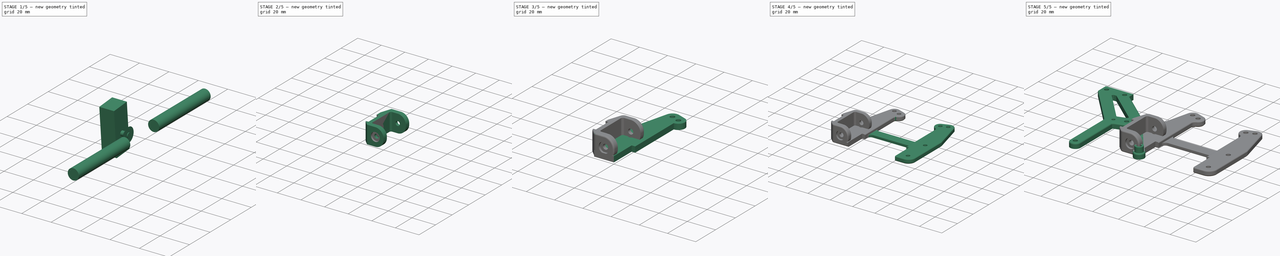
[diagram: build sequence overview — one tinted view per stage of 5, left to right]
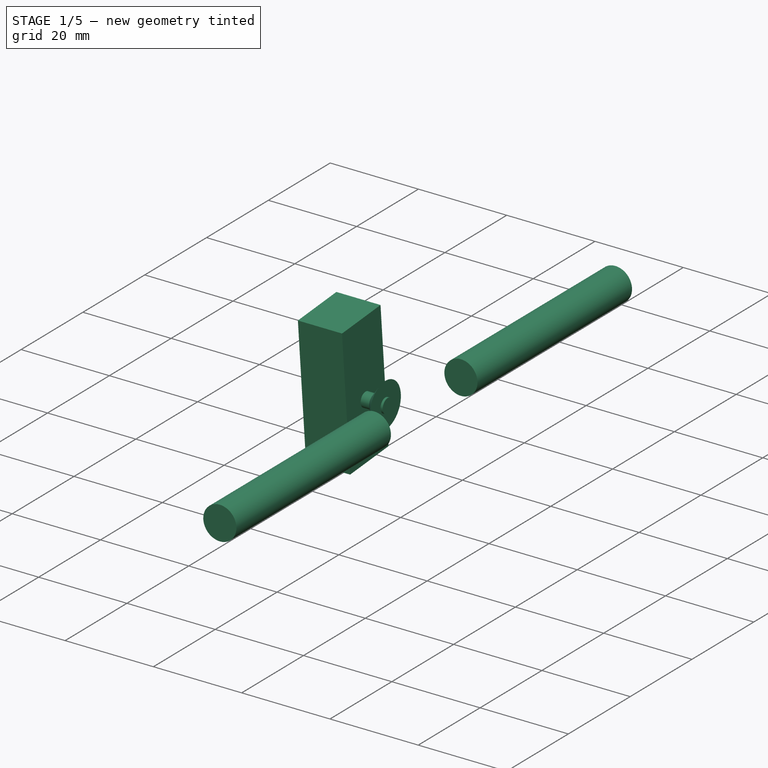
[diagram: stage 1 of 5 — iso view after this stage's code; geometry added in this stage tinted green]
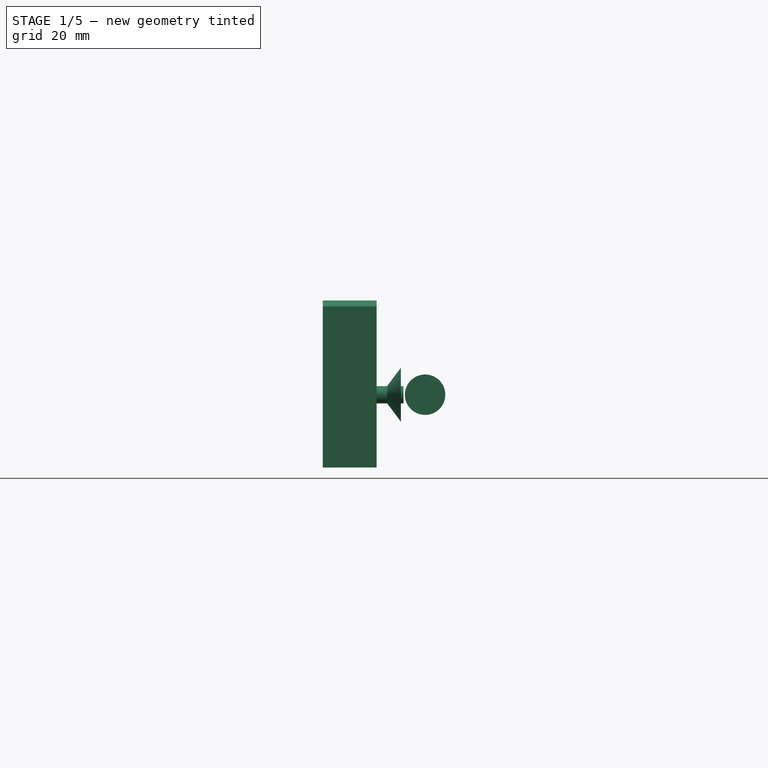
[diagram: stage 1 of 5 — front view after this stage's code; geometry added in this stage tinted green]
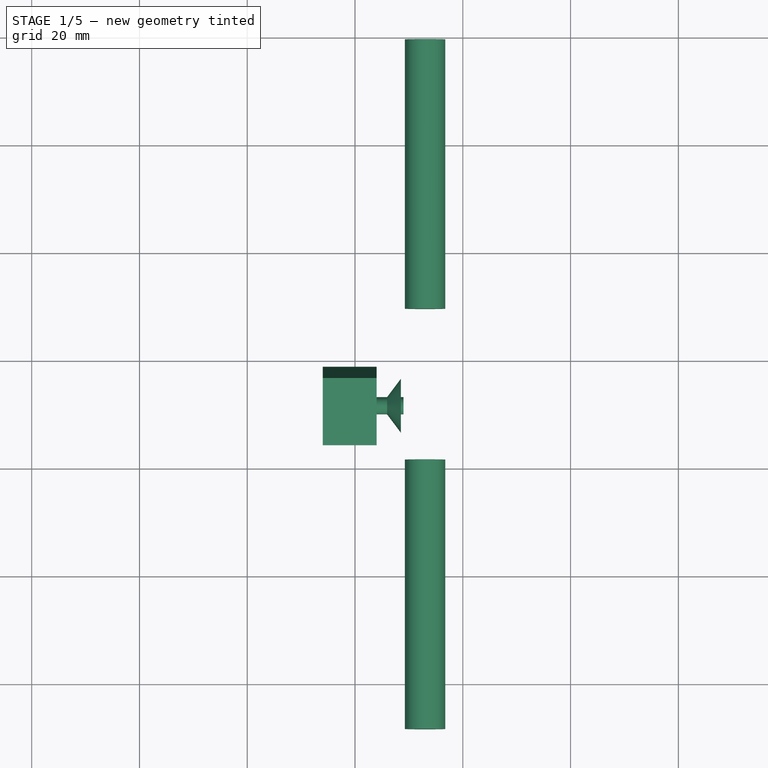
[diagram: stage 1 of 5 — top view after this stage's code; geometry added in this stage tinted green]
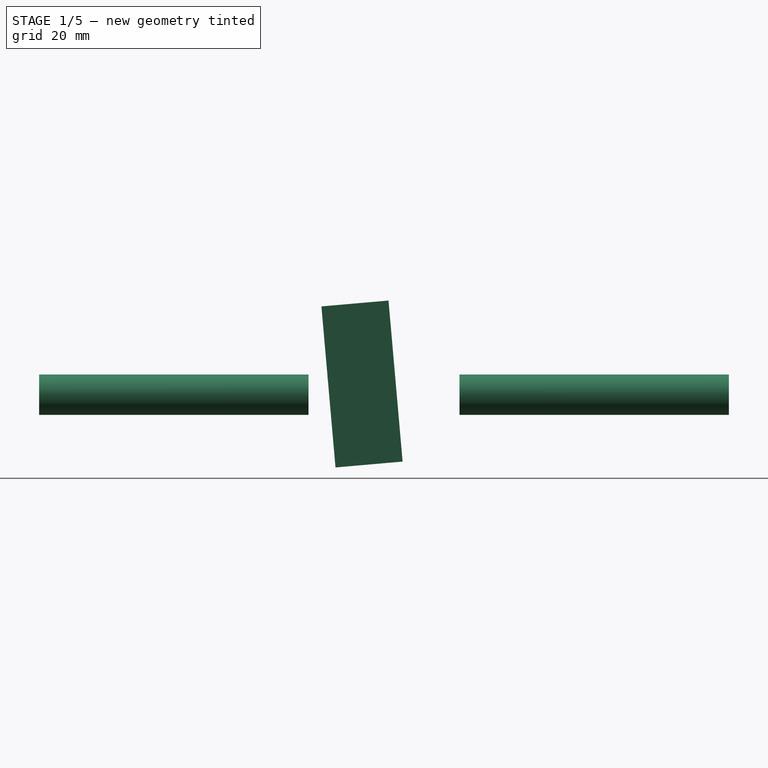
[diagram: stage 1 of 5 — right view after this stage's code; geometry added in this stage tinted green]
FCSTD DOCUMENT  (FreeCAD 0.18.3R)
Label: hops
License: All rights reserved
LicenseURL: http://en.wikipedia.org/wiki/All_rights_reserved
objects: Part::Fillet×8, Part::Cut×7, Part::Cylinder×6, Sketcher::SketchObject×3, PartDesign::Pad×3, PartDesign::Body×3, App::Part×3, Part::Box×3, Part::MultiFuse×2, Part::Mirroring×1, Part::Chamfer×1, Part::Cone×1
note: 41 computed .brp shape members not serialized (recipe doc carries the construction recipe); baked Part::Feature solids carry a one-line shape summary decoded from their .brp

FEATURE [Part::Cylinder] Cylinder003
  Angle = 360
  AttacherType = Attacher::AttachEngine3D
  Height = 50
  Placement = pos=(-7,29.5,7.5) rot=(-1,0,0;1.5708rad)
  Radius = 3.75
FEATURE [Part::Cylinder] Cylinder004
  Angle = 360
  AttacherType = Attacher::AttachEngine3D
  Height = 50
  Placement = pos=(-7,-48.5,7.5) rot=(-1,0,0;1.5708rad)
  Radius = 3.75
FEATURE [Part::MultiFuse] Fusion001
  Refine = true
  Shapes = -> [Cylinder003,Cylinder004]
FEATURE [Part::Box] Box001  label="Cube001"
  AttacherType = Attacher::AttachEngine3D
  Height = 30
  Length = 10
  Placement = pos=(-26,6.5,-6) rot=(1,0,0;0.087266rad)
  Width = 12.5
FEATURE [Part::Cylinder] Cylinder005
  Angle = 360
  AttacherType = Attacher::AttachEngine3D
  Height = 10
  Placement = pos=(-11,11.5,7.5) rot=(0,1,0;4.71239rad)
  Radius = 1.6
FEATURE [Part::Cone] Cone
  Angle = 360
  AttacherType = Attacher::AttachEngine3D
  Height = 3
  Placement = pos=(-11.5,11.5,7.5) rot=(0,1,0;4.71239rad)
  Radius1 = 5
  Radius2 = 1
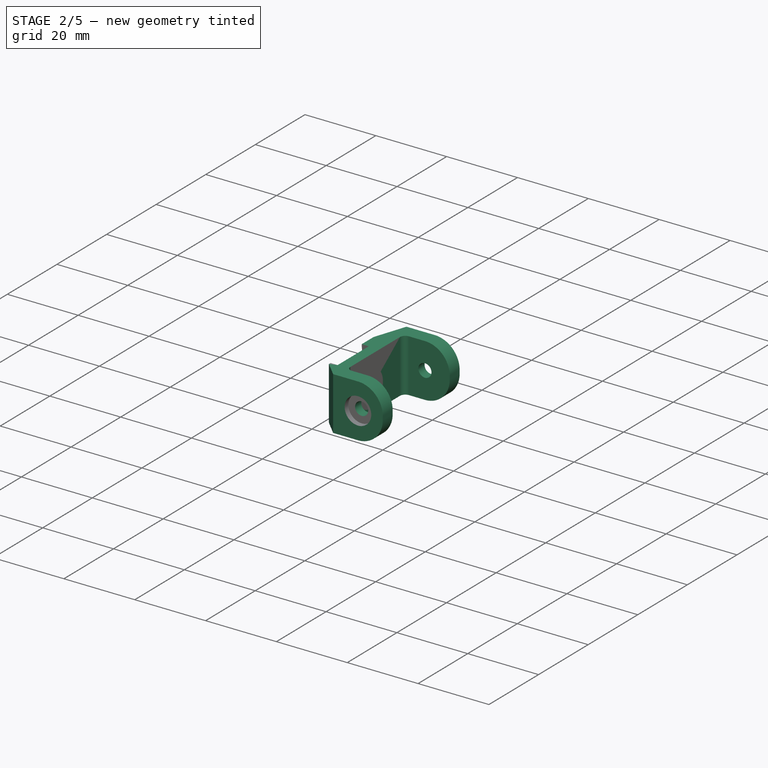
[diagram: stage 2 of 5 — iso view after this stage's code; geometry added in this stage tinted green]
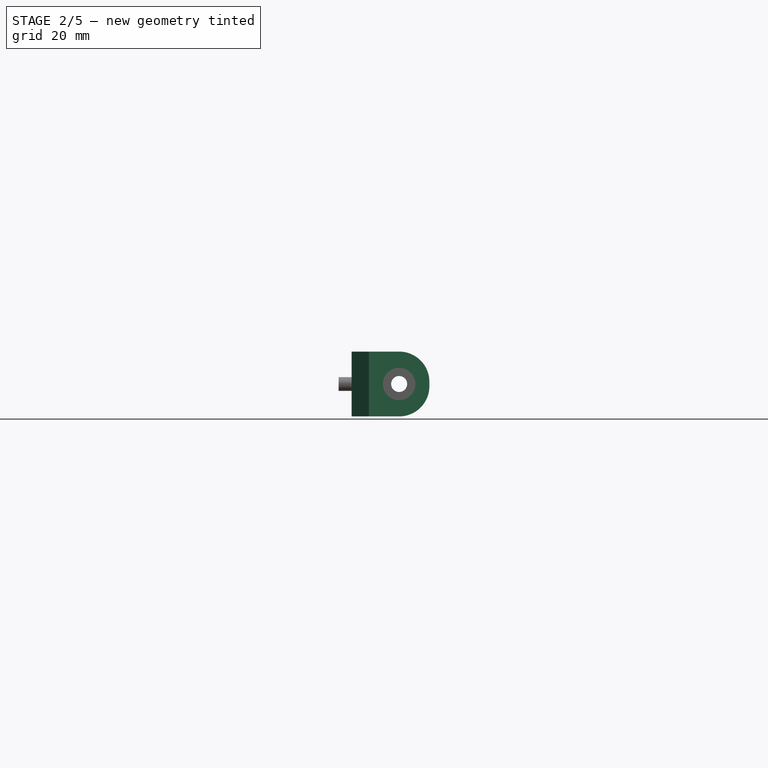
[diagram: stage 2 of 5 — front view after this stage's code; geometry added in this stage tinted green]
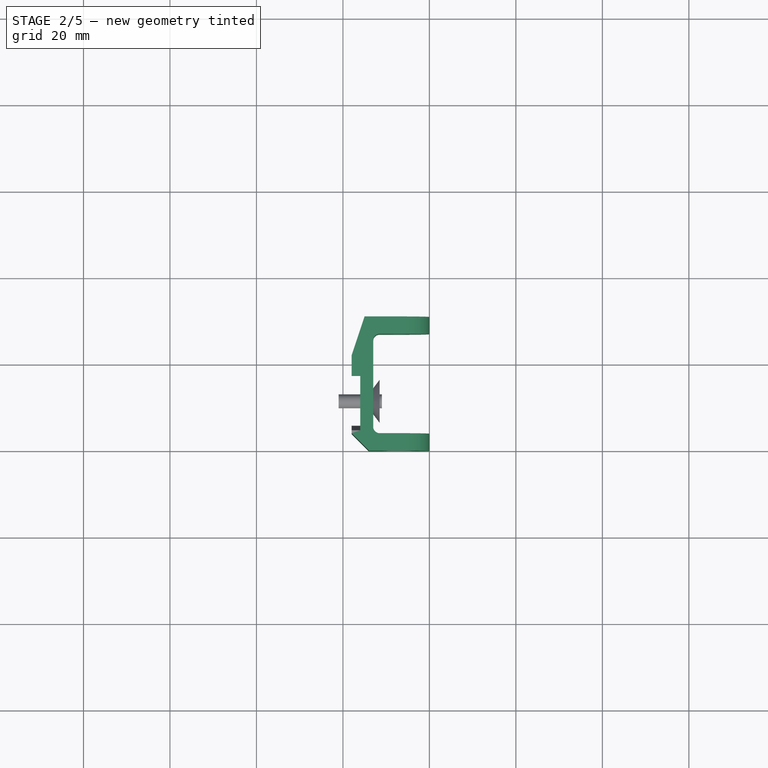
[diagram: stage 2 of 5 — top view after this stage's code; geometry added in this stage tinted green]
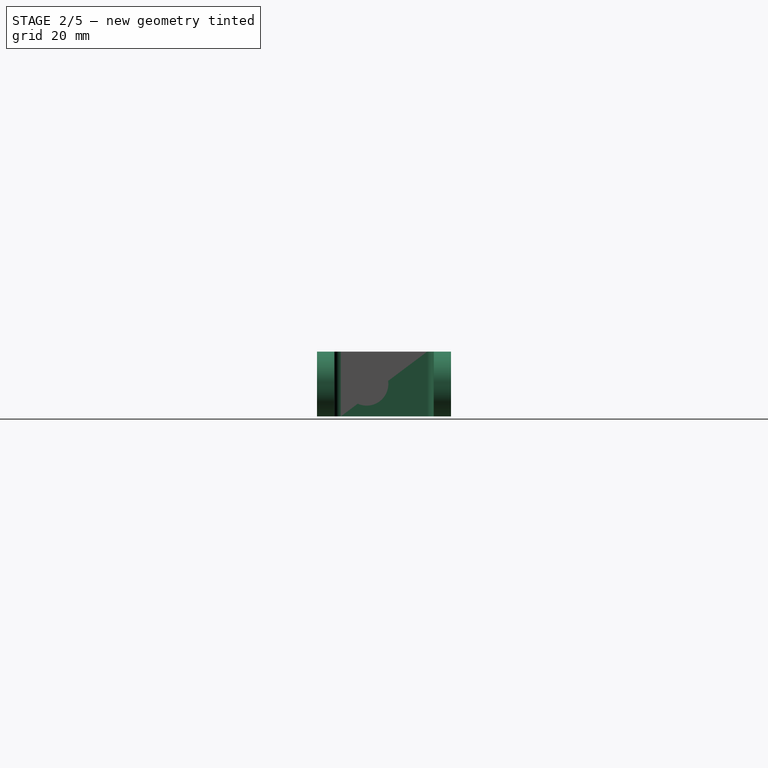
[diagram: stage 2 of 5 — right view after this stage's code; geometry added in this stage tinted green]
FEATURE [Sketcher::SketchObject] Sketch
  MapMode = 5
  Support = -> [XY_Plane005]
  sketch-geometry (11):
    g0: LineSegment StartX=-14 StartY=0 StartZ=0 EndX=-18 EndY=4 EndZ=0
    g1: LineSegment StartX=-18 StartY=22 StartZ=0 EndX=-15 EndY=31 EndZ=0
    g2: LineSegment StartX=-15 StartY=31 StartZ=0 EndX=0 EndY=31 EndZ=0
    g3: LineSegment StartX=0 StartY=31 StartZ=0 EndX=0 EndY=27 EndZ=0
    g4: LineSegment StartX=0 StartY=27 StartZ=0 EndX=-13 EndY=27 EndZ=0
    g5: LineSegment StartX=-13 StartY=27 StartZ=0 EndX=-13 EndY=4 EndZ=0
    g6: LineSegment StartX=-13 StartY=4 StartZ=0 EndX=0 EndY=4 EndZ=0
    g7: LineSegment StartX=0 StartY=4 StartZ=0 EndX=0 EndY=0 EndZ=0
    g8: LineSegment StartX=0 StartY=0 StartZ=0 EndX=-14 EndY=0 EndZ=0
    g9: LineSegment [constr] StartX=0 StartY=27 StartZ=0 EndX=0 EndY=4 EndZ=0
    g10: LineSegment StartX=-18 StartY=22 StartZ=0 EndX=-18 EndY=4 EndZ=0
  constraints (31):
    c: Coincident(g1,g2)
    c: Horizontal(g2)
    c: Coincident(g2,g3)
    c: Coincident(g3,g4)
    c: Coincident(g4,g5)
    c: Vertical(g5)
    c: Coincident(g5,g6)
    c: Horizontal(g6)
    c: Coincident(g6,g7)
    c: Vertical(g7)
    c: Coincident(g7,g8)
    c: Coincident(g8,g0)
    c: Horizontal(g8)
    c: Equal(g7,g3)
    c: Vertical(g3)
    c: Distance(g3) = 4
    c: Horizontal(g4)
    c: Coincident(g9,g3)
    c: Coincident(g9,g6)
    c: Vertical(g9)
    c: Distance(g5) = 23
    c: Vertical(g10)
    c: Distance(g10,g5) = 5
    c: Coincident(g1,g10)
    c: Coincident(g0,g10)
    c: Distance(g10) = 18
    c: Angle(g8,g0) = 2.35619
    c: Coincident(g7,g-1)
    c: DistanceX(g0,g7) = 18
    c: Distance(g8) = 14
    c: Distance(g2) = 15
FEATURE [PartDesign::Pad] Pad002
  Length = 15
  Length2 = 100
  Profile = -> Sketch
  Refine = true
  Type = 0
FEATURE [PartDesign::Body] Body002
  Group = -> [Sketch,Pad002]
  Origin = -> Origin005
  Tip = -> Pad002
FEATURE [App::Part] Part002
  Group = -> [Body002]
  Origin = -> Origin004
FEATURE [Part::Fillet] Fillet007
  Base = -> Pad002
  Edges = 2 edges r=1.5: [Edge11,Edge14]
FEATURE [Part::Fillet] Fillet008
  Base = -> Fillet007
  Edges = 4 edges r=7: [Edge6,Edge13,Edge19,Edge26]
FEATURE [Part::Cylinder] Cylinder002
  Angle = 360
  AttacherType = Attacher::AttachEngine3D
  Height = 50
  Placement = pos=(-7,-6,7.5) rot=(1,0,0;-1.5708rad)
  Radius = 1.85
FEATURE [Part::Cut] Cut001
  Base = -> Fillet008
  Refine = true
  Tool = -> Cylinder002
FEATURE [Part::Cut] Cut002
  Base = -> Cut001
  Refine = true
  Tool = -> Fusion001
FEATURE [Part::Cut] Cut003
  Base = -> Cut002
  Refine = true
  Tool = -> Box001
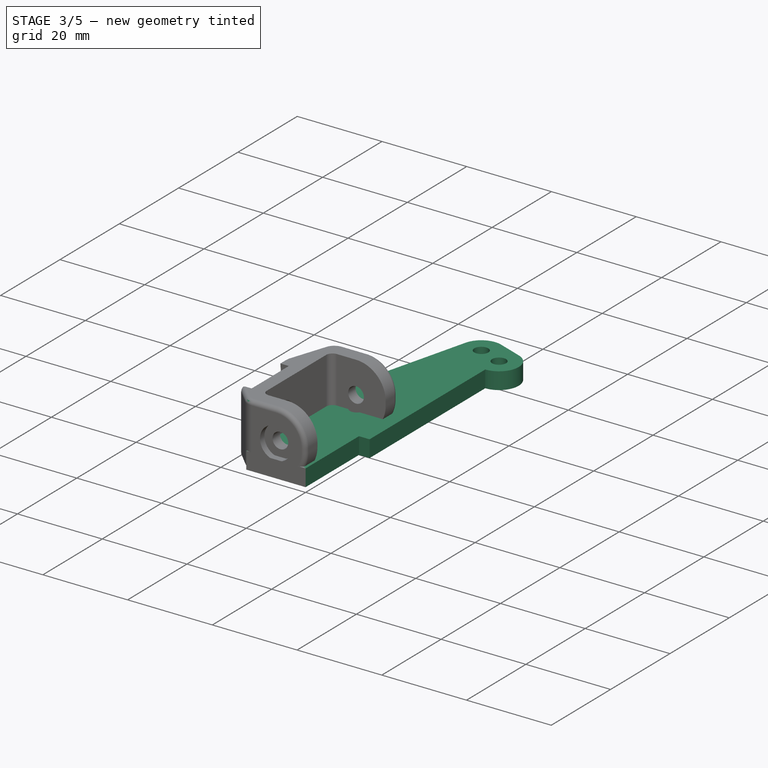
[diagram: stage 3 of 5 — iso view after this stage's code; geometry added in this stage tinted green]
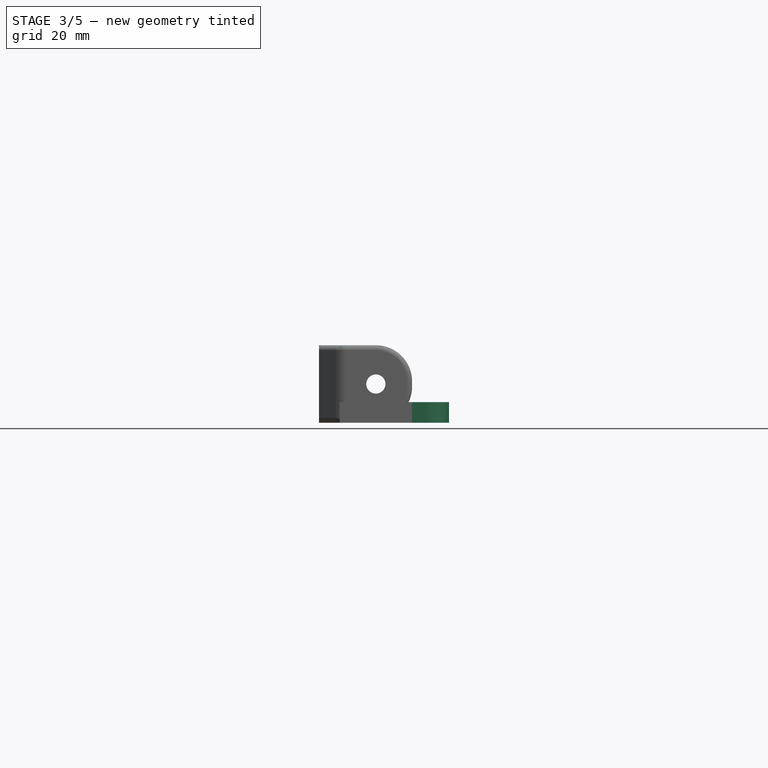
[diagram: stage 3 of 5 — front view after this stage's code; geometry added in this stage tinted green]
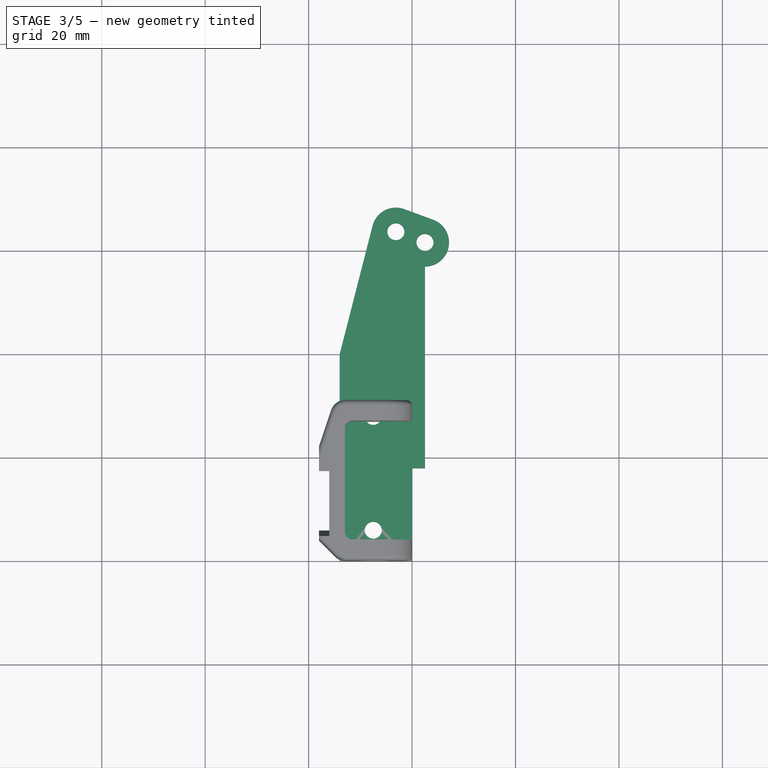
[diagram: stage 3 of 5 — top view after this stage's code; geometry added in this stage tinted green]
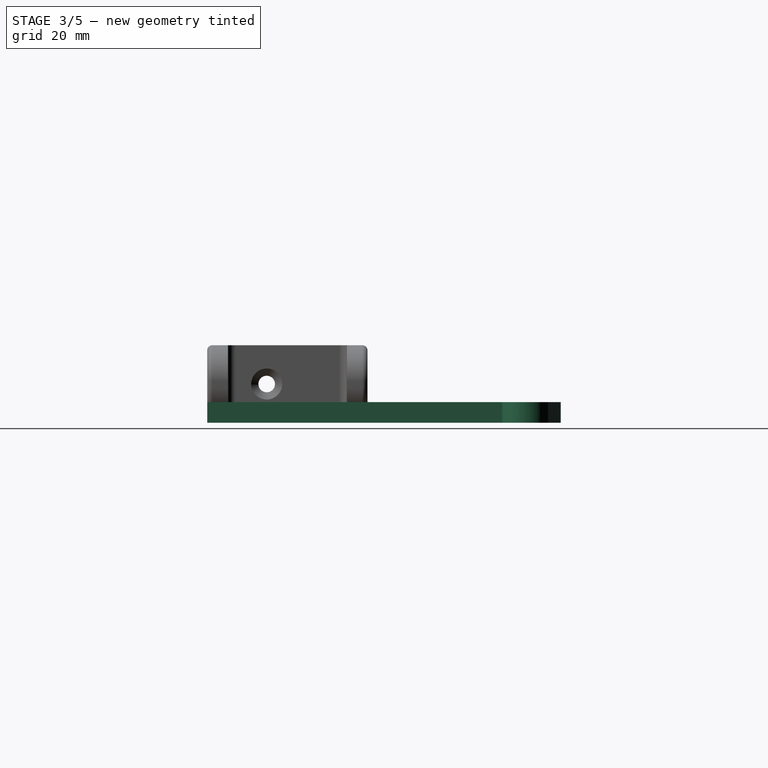
[diagram: stage 3 of 5 — right view after this stage's code; geometry added in this stage tinted green]
FEATURE [Sketcher::SketchObject] Sketch008
  MapMode = 5
  sketch-geometry (22):
    g0: LineSegment StartX=-14 StartY=0 StartZ=0 EndX=-14 EndY=40 EndZ=0
    g1: LineSegment StartX=-14 StartY=40 StartZ=0 EndX=-7.63739 EndY=64.8701 EndZ=0
    g2: LineSegment StartX=2.5 StartY=18 StartZ=0 EndX=0 EndY=18 EndZ=0
    g3: LineSegment StartX=0 StartY=18 StartZ=0 EndX=0 EndY=0 EndZ=0
    g4: LineSegment StartX=-14 StartY=0 StartZ=0 EndX=0 EndY=0 EndZ=0
    g5: LineSegment StartX=2.5 StartY=18 StartZ=0 EndX=2.5 EndY=57 EndZ=0
    g6: Circle CenterX=2.5 CenterY=61.65 CenterZ=0 NormalX=0 NormalY=0 NormalZ=1 AngleXU=0 Radius=1.65
    g7: LineSegment StartX=-1.53006 StartY=68.0828 StartZ=0 EndX=4.10242 EndY=66.0152 EndZ=0
    g8: LineSegment [constr] StartX=3.0686 StartY=63.1989 StartZ=0 EndX=4.10242 EndY=66.0152 EndZ=0
    g9: ArcOfCircle CenterX=-3.13248 CenterY=63.7176 CenterZ=0 NormalX=0 NormalY=0 NormalZ=1 AngleXU=0 Radius=4.65 StartAngle=1.21898 EndAngle=2.89113
    g10: ArcOfCircle CenterX=2.5 CenterY=61.65 CenterZ=0 NormalX=0 NormalY=0 NormalZ=1 AngleXU=0 Radius=4.65 StartAngle=4.71239 EndAngle=7.50216
    g11: Circle CenterX=-3.13248 CenterY=63.7176 CenterZ=0 NormalX=0 NormalY=0 NormalZ=1 AngleXU=0 Radius=1.65
    g12: Circle [constr] CenterX=-7 CenterY=54.5 CenterZ=0 NormalX=0 NormalY=0 NormalZ=1 AngleXU=0 Radius=61
    g13: LineSegment [constr] StartX=-7.5 StartY=6 StartZ=0 EndX=-36.9961 EndY=5.52265 EndZ=0
    g14: LineSegment [constr] StartX=-36.9961 StartY=5.52265 StartZ=0 EndX=-42.4892 EndY=11.3387 EndZ=0
    g15: LineSegment [constr] StartX=-7.5 StartY=28 StartZ=0 EndX=-31.4709 EndY=26.8175 EndZ=0
    g16: LineSegment [constr] StartX=-31.4709 StartY=26.8175 StartZ=0 EndX=-36.9961 EndY=5.52265 EndZ=0
    g17: LineSegment [constr] StartX=-31.4709 StartY=26.8175 StartZ=0 EndX=-42.4892 EndY=11.3387 EndZ=0
    g18: Circle [constr] CenterX=2.5 CenterY=61.65 CenterZ=0 NormalX=0 NormalY=0 NormalZ=1 AngleXU=0 Radius=48
    g19: Circle [constr] CenterX=2.5 CenterY=61.65 CenterZ=0 NormalX=0 NormalY=0 NormalZ=1 AngleXU=0 Radius=61
    g20: Circle CenterX=-7.5 CenterY=28 CenterZ=0 NormalX=0 NormalY=0 NormalZ=1 AngleXU=0 Radius=1.65
    g21: Circle CenterX=-7.5 CenterY=6 CenterZ=0 NormalX=0 NormalY=0 NormalZ=1 AngleXU=0 Radius=1.65
  constraints (57):
    c: Vertical(g0)
    c: Coincident(g0,g1)
    c: Horizontal(g2)
    c: Coincident(g2,g3)
    c: Vertical(g3)
    c: Coincident(g4,g0)
    c: Coincident(g4,g3)
    c: Horizontal(g4)
    c: Coincident(g5,g2)
    c: Vertical(g5)
    c: Distance(g3) = 18
    c: Distance(g2) = 2.5
    c: Distance(g4) = 14
    c: Coincident(g3,g-1)
    c: DistanceY(g-1,g5) = 57
    c: PointOnObject(g8,g6)
    c: PointOnObject(g8,g7)
    c: Perpendicular(g6,g8)
    c: Perpendicular(g7,g8)
    c: Radius(g6) = 1.65
    c: Distance(g8) = 3
    c: Tangent(g1,g9) = 1.5708
    c: Tangent(g7,g9) = 1.5708
    c: Tangent(g7,g10) = 1.5708
    c: Coincident(g10,g6)
    c: Equal(g9,g10)
    c: Equal(g11,g6)
    c: Coincident(g9,g11)
    c: DistanceY(g3,g12) = 54.5
    c: DistanceX(g12,g3) = 7
    c: Radius(g12) = 61
    c: Coincident(g5,g10)
    c: Coincident(g13,g14)
    c: Distance(g14) = 8
    c: Distance(g13) = 29.5
    c: Distance(g15) = 24
    c: DistanceY(g3,g15) = 28
    c: DistanceX(g15,g3) = 7.5
    c: Coincident(g16,g15)
    c: Coincident(g16,g13)
    c: Distance(g16) = 22
    c: DistanceX(g13,g3) = 7.5
    c: DistanceY(g3,g13) = 6
    c: Distance(g17) = 19
    c: Coincident(g15,g17)
    c: Coincident(g14,g17)
    c: Coincident(g6,g18)
    c: Coincident(g6,g19)
    c: Radius(g19) = 61
    c: Radius(g18) = 48
    c: DistanceX(g3,g6) = 2.5
    c: Coincident(g20,g15)
    c: Coincident(g21,g13)
    c: Equal(g21,g20)
    c: Equal(g20,g6)
    c: Distance(g6,g9) = 6
    c: Distance(g0) = 40
FEATURE [PartDesign::Pad] Pad
  Length = 4
  Length2 = 100
  Profile = -> Sketch008
  Refine = true
  Type = 0
FEATURE [Part::Cut] Cut004
  Base = -> Cut003
  Refine = true
  Tool = -> Cylinder005
FEATURE [Part::Box] Box002  label="Cube002"
  AttacherType = Attacher::AttachEngine3D
  Height = 10
  Length = 10
  Placement = pos=(-16.5,9,-1) rot=(0,1,0;0.610865rad)
  Width = 14
FEATURE [Part::Fillet] Fillet009
  Base = -> Cut004
  Edges = 9 edges: [Edge10 r=1,Edge16 r=1,Edge30 r=1,Edge31 r=1,Edge37 r=1,Edge43 r=1,Edge46 r=3,Edge55 r=3,Edge58 r=1]
FEATURE [Part::Cut] Cut005
  Base = -> Fillet009
  Refine = true
  Tool = -> Box002
FEATURE [Part::Cut] Cut006
  Base = -> Cut005
  Refine = true
  Tool = -> Cone
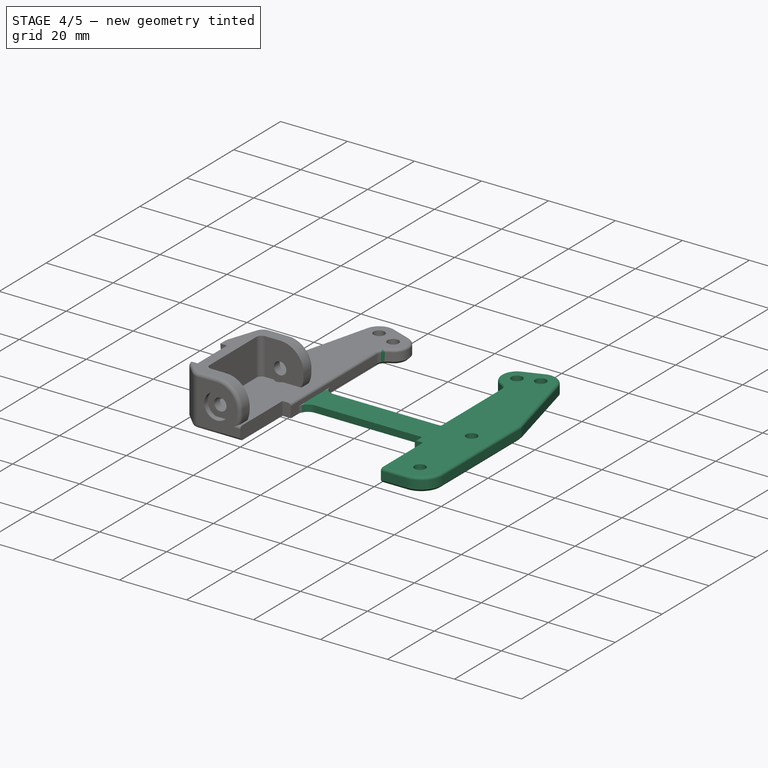
[diagram: stage 4 of 5 — iso view after this stage's code; geometry added in this stage tinted green]
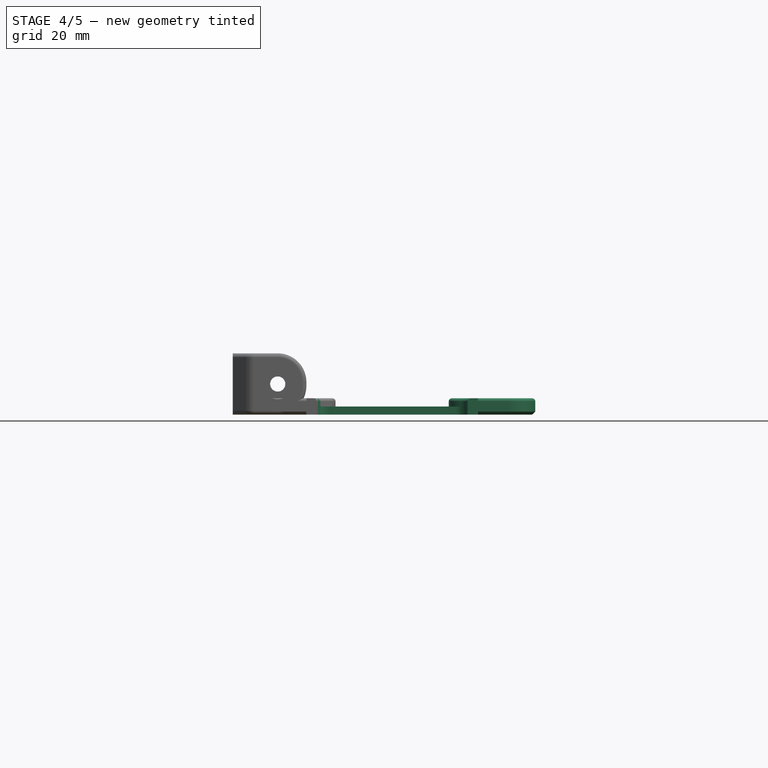
[diagram: stage 4 of 5 — front view after this stage's code; geometry added in this stage tinted green]
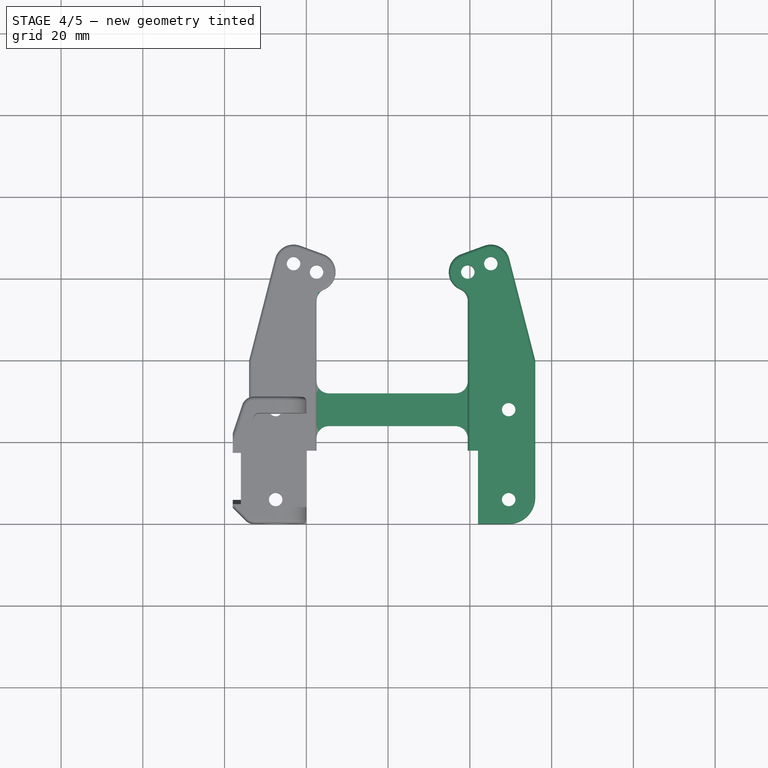
[diagram: stage 4 of 5 — top view after this stage's code; geometry added in this stage tinted green]
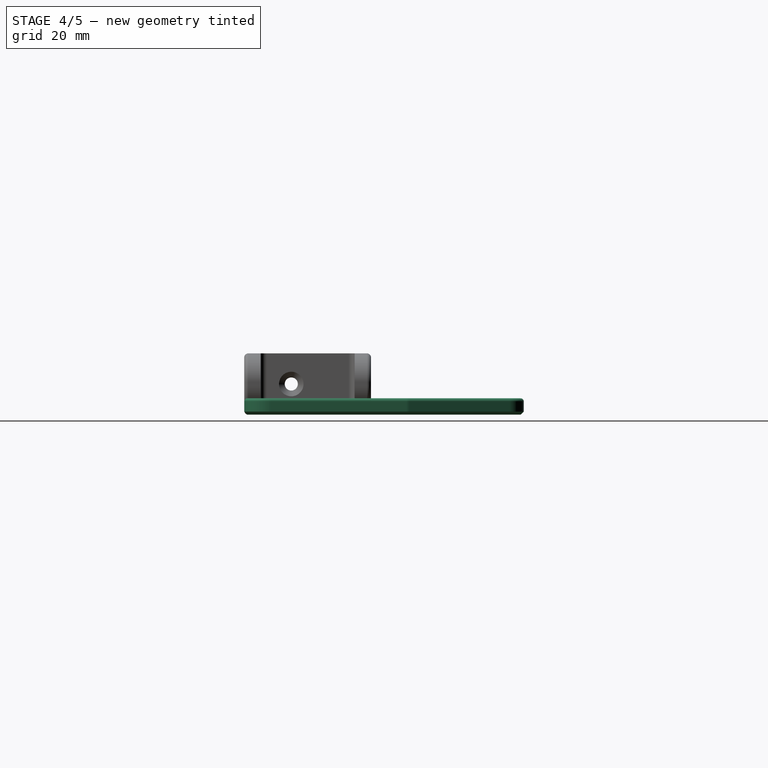
[diagram: stage 4 of 5 — right view after this stage's code; geometry added in this stage tinted green]
FEATURE [PartDesign::Body] Body
  Group = -> [Sketch008,Pad]
  Origin = -> Origin001
  Tip = -> Pad
FEATURE [App::Part] Part
  Group = -> [Body]
  Origin = -> Origin
FEATURE [Part::Box] Box  label="Cube"
  AttacherType = Attacher::AttachEngine3D
  Height = 2
  Length = 43
  Placement = pos=(0,24,0) rot=(0,0,1;0rad)
  Width = 8
FEATURE [Part::Mirroring] Part__Mirroring  label="Pad (Mirror #1)"
  Base = (0,0,0)
  Normal = (1,0,0)
  Placement = pos=(42,0,0) rot=(0,0,1;0rad)
  Source = -> Pad
FEATURE [Part::MultiFuse] Fusion
  Refine = true
  Shapes = -> [Pad,Box,Part__Mirroring]
FEATURE [Part::Fillet] Fillet
  Base = -> Fusion
  Edges = 2 edges r=6.5: [Edge34,Edge78]
FEATURE [Part::Fillet] Fillet001
  Base = -> Fillet
  Edges = 8 edges r=3: [Edge23,Edge29,Edge31,Edge33,Edge64,Edge68,Edge69,Edge82]
FEATURE [Part::Fillet] Fillet006
  Base = -> Fillet001
  Edges = 2 edges r=0.75: [Edge6,Edge113]
FEATURE [Part::Chamfer] Chamfer
  Base = -> Fillet006
  Edges = 1 edges r=0.75: [Edge79]
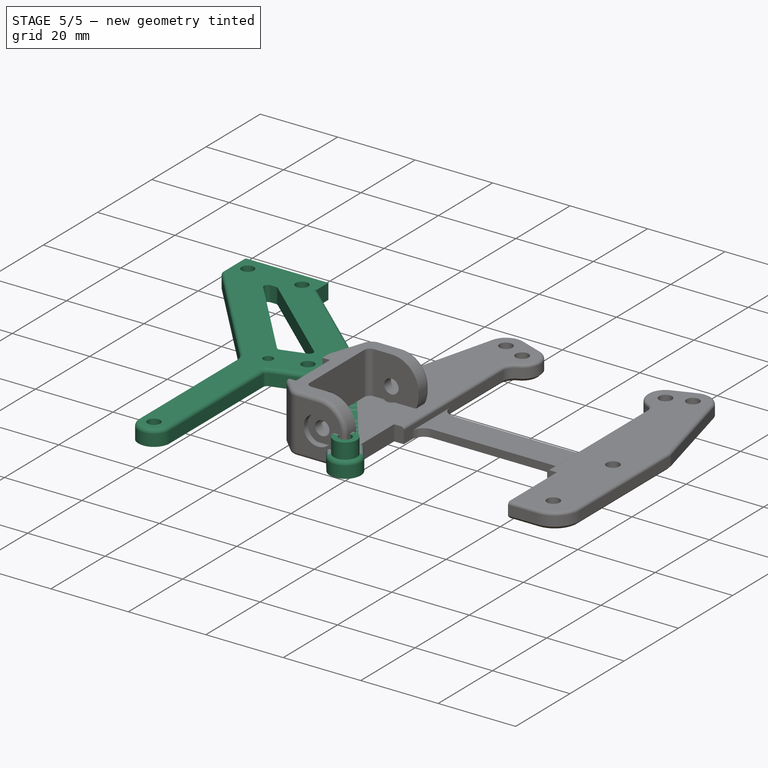
[diagram: stage 5 of 5 — iso view after this stage's code; geometry added in this stage tinted green]
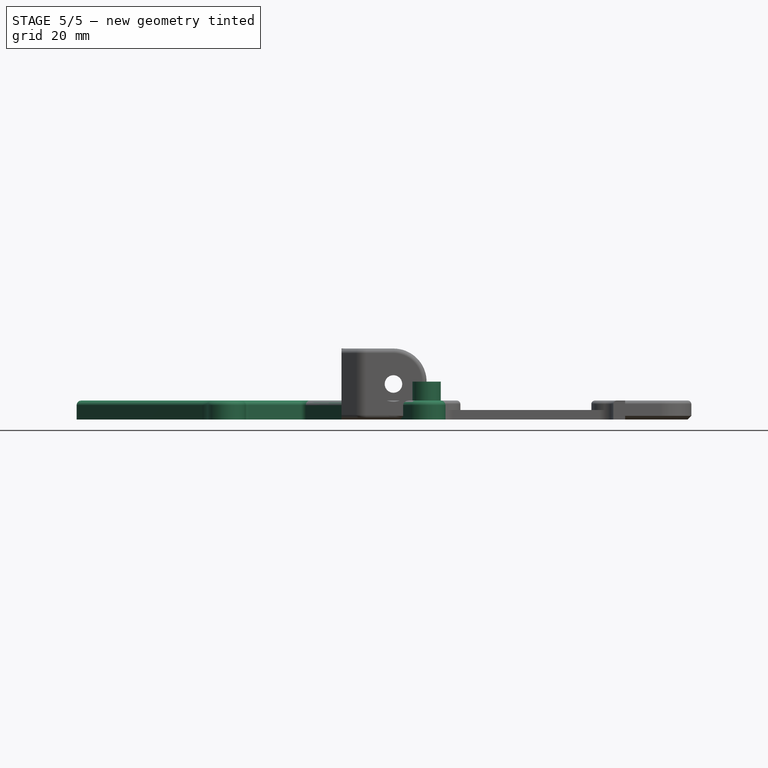
[diagram: stage 5 of 5 — front view after this stage's code; geometry added in this stage tinted green]
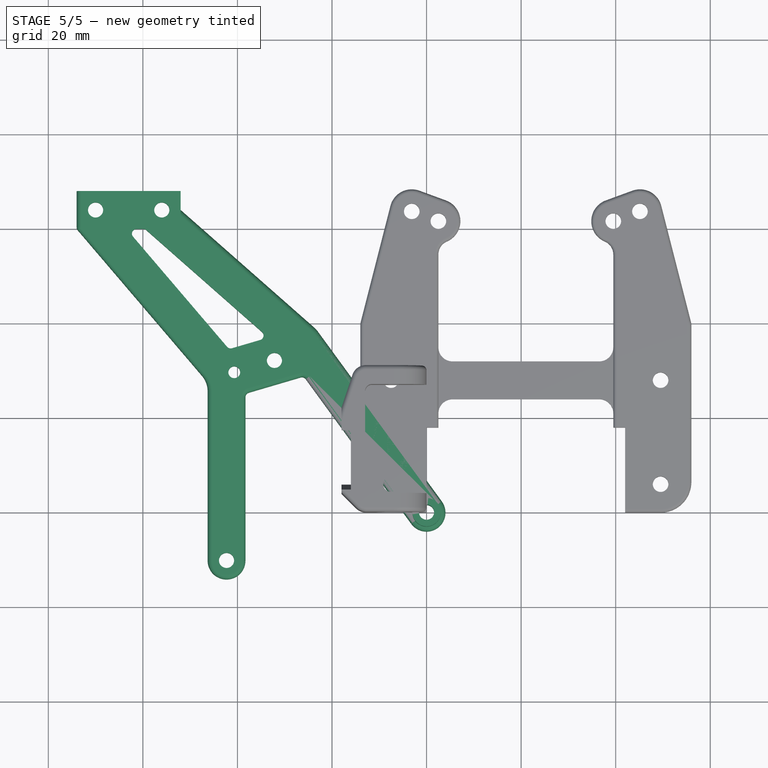
[diagram: stage 5 of 5 — top view after this stage's code; geometry added in this stage tinted green]
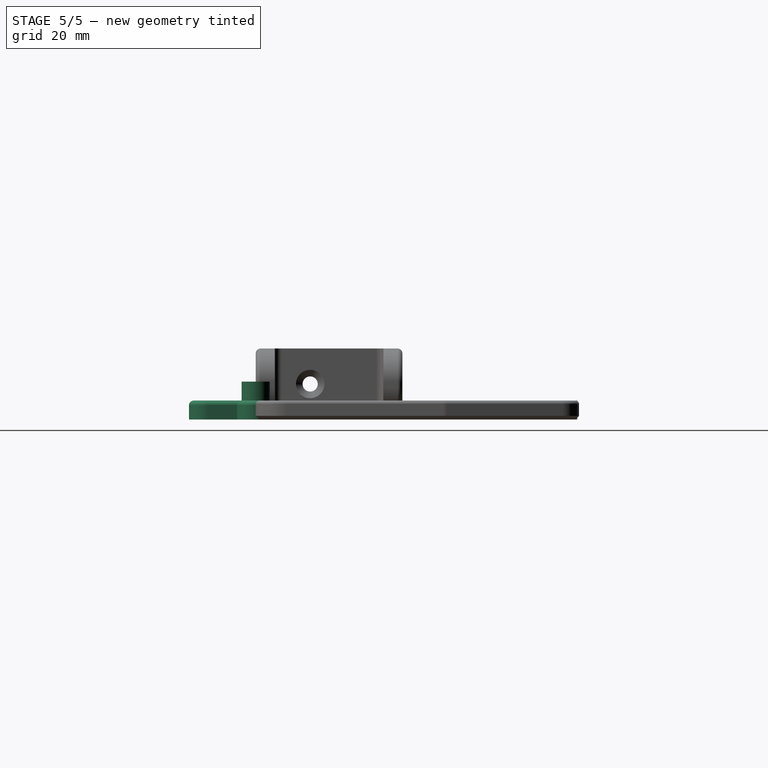
[diagram: stage 5 of 5 — right view after this stage's code; geometry added in this stage tinted green]
FEATURE [Part::Cylinder] Cylinder
  Angle = 360
  AttacherType = Attacher::AttachEngine3D
  Height = 8
  Radius = 3
FEATURE [Part::Cylinder] Cylinder001
  Angle = 360
  AttacherType = Attacher::AttachEngine3D
  Height = 10
  Placement = pos=(0,0,-1) rot=(0,0,1;0rad)
  Radius = 1.6
FEATURE [Part::Cut] Cut
  Base = -> Cylinder
  Refine = true
  Tool = -> Cylinder001
FEATURE [Sketcher::SketchObject] Sketch005
  MapMode = 5
  sketch-geometry (44):
    g0: LineSegment StartX=-25.9573 StartY=28.7898 StartZ=0 EndX=-3.23131 EndY=-2.35767 EndZ=0
    g1: LineSegment StartX=-23.3098 StartY=38.7341 StartZ=0 EndX=3.23134 EndY=2.35763 EndZ=0
    g2: ArcOfCircle CenterX=0 CenterY=0 CenterZ=0 NormalX=0 NormalY=0 NormalZ=1 AngleXU=0 Radius=4 StartAngle=3.77193 EndAngle=6.91351
    g3: LineSegment [constr] StartX=-32.1734 StartY=32.1734 StartZ=0 EndX=0 EndY=0 EndZ=0
    g4: LineSegment [constr] StartX=-24.1208 StartY=6.57163 StartZ=0 EndX=-6.0676 EndY=25.2821 EndZ=0
    g5: Circle [constr] CenterX=-24.1208 CenterY=6.57163 CenterZ=0 NormalX=0 NormalY=0 NormalZ=1 AngleXU=0 Radius=9.5
    g6: Circle [constr] CenterX=-6.0676 CenterY=25.2821 CenterZ=0 NormalX=0 NormalY=0 NormalZ=1 AngleXU=0 Radius=6
    g7: LineSegment StartX=-74 StartY=68 StartZ=0 EndX=-52 EndY=68 EndZ=0
    g8: Circle CenterX=-32.1734 CenterY=32.1734 CenterZ=0 NormalX=0 NormalY=0 NormalZ=1 AngleXU=0 Radius=1.6
    g9: Circle CenterX=0 CenterY=0 CenterZ=0 NormalX=0 NormalY=0 NormalZ=1 AngleXU=0 Radius=1.6
    g10: Circle CenterX=-40.6734 CenterY=29.6734 CenterZ=0 NormalX=0 NormalY=0 NormalZ=1 AngleXU=0 Radius=1.25
    g11: LineSegment [constr] StartX=-32.1734 StartY=32.1734 StartZ=0 EndX=-42.3039 EndY=-10.1306 EndZ=0
    g12: LineSegment [constr] StartX=-42.3039 StartY=-10.1306 StartZ=0 EndX=0 EndY=0 EndZ=0
    g13: LineSegment StartX=-25.9573 StartY=28.7898 StartZ=0 EndX=-38.3039 EndY=25.1585 EndZ=0
    g14: LineSegment StartX=-38.3039 StartY=25.1585 StartZ=0 EndX=-38.3039 EndY=-10.1306 EndZ=0
    g15: LineSegment StartX=-23.3098 StartY=38.7341 StartZ=0 EndX=-52 EndY=64 EndZ=0
    g16: LineSegment StartX=-59.5626 StartY=60 StartZ=0 EndX=-33.4547 EndY=37.0083 EndZ=0
    g17: LineSegment StartX=-33.4547 StartY=37.0083 StartZ=0 EndX=-41.7713 EndY=34.5622 EndZ=0
    g18: LineSegment StartX=-59.5626 StartY=60 StartZ=0 EndX=-63.4823 EndY=60 EndZ=0
    g19: LineSegment StartX=-63.4823 StartY=60 StartZ=0 EndX=-41.7713 EndY=34.5622 EndZ=0
    g20: LineSegment [constr] StartX=-25.9573 StartY=28.7898 StartZ=0 EndX=-28.7789 EndY=38.3835 EndZ=0
    g21: LineSegment [constr] StartX=-63.4823 StartY=60 StartZ=0 EndX=-69.5674 EndY=54.8065 EndZ=0
    g22: LineSegment [constr] StartX=-63.4823 StartY=60 StartZ=0 EndX=-63.4823 EndY=68 EndZ=0
    g23: LineSegment [constr] StartX=-33.4547 StartY=37.0083 StartZ=0 EndX=-28.1675 EndY=43.012 EndZ=0
    g24: LineSegment [constr] StartX=-38.3039 StartY=25.1585 StartZ=0 EndX=-46.3039 EndY=25.1585 EndZ=0
    g25: ArcOfCircle CenterX=-42.3039 CenterY=-10.1306 CenterZ=0 NormalX=0 NormalY=0 NormalZ=1 AngleXU=0 Radius=4 StartAngle=3.14159 EndAngle=6.28319
    g26: Circle CenterX=-42.3039 CenterY=-10.1306 CenterZ=0 NormalX=0 NormalY=0 NormalZ=1 AngleXU=0 Radius=1.6
    g27: LineSegment [constr] StartX=-33.4547 StartY=37.0083 StartZ=0 EndX=-23.3098 EndY=38.7341 EndZ=0
    g28: LineSegment [constr] StartX=-25.9573 StartY=28.7898 StartZ=0 EndX=-23.3098 EndY=38.7341 EndZ=0
    g29: LineSegment [constr] StartX=-32.1734 StartY=32.1734 StartZ=0 EndX=-33.5842 EndY=36.9702 EndZ=0
    g30: LineSegment [constr] StartX=-32.1734 StartY=32.1734 StartZ=0 EndX=-30.7625 EndY=27.3765 EndZ=0
    g31: LineSegment [constr] StartX=-40.6734 StartY=29.6734 StartZ=0 EndX=-32.1734 EndY=32.1734 EndZ=0
    g32: Circle CenterX=-70 CenterY=64 CenterZ=0 NormalX=0 NormalY=0 NormalZ=1 AngleXU=0 Radius=1.6
    g33: Circle CenterX=-56 CenterY=64 CenterZ=0 NormalX=0 NormalY=0 NormalZ=1 AngleXU=0 Radius=1.6
    g34: LineSegment [constr] StartX=-70 StartY=64 StartZ=0 EndX=-70 EndY=68 EndZ=0
    g35: LineSegment [constr] StartX=-56 StartY=64 StartZ=0 EndX=-56 EndY=68 EndZ=0
    g36: LineSegment StartX=-74 StartY=60 StartZ=0 EndX=-46.3039 EndY=27.5498 EndZ=0
    g37: LineSegment StartX=-46.3039 StartY=27.5498 StartZ=0 EndX=-46.3039 EndY=-10.1306 EndZ=0
    g38: LineSegment [constr] StartX=-46.3039 StartY=27.5498 StartZ=0 EndX=-41.7713 EndY=34.5622 EndZ=0
    g39: LineSegment [constr] StartX=-46.3039 StartY=27.5498 StartZ=0 EndX=-38.3039 EndY=25.1585 EndZ=0
    g40: LineSegment StartX=-74 StartY=68 StartZ=0 EndX=-74 EndY=60 EndZ=0
    g41: LineSegment [constr] StartX=-74 StartY=64 StartZ=0 EndX=-70 EndY=64 EndZ=0
    g42: LineSegment StartX=-52 StartY=64 StartZ=0 EndX=-52 EndY=68 EndZ=0
    g43: LineSegment [constr] StartX=-56 StartY=64 StartZ=0 EndX=-52 EndY=64 EndZ=0
  constraints (119):
    c: Coincident(g2,g0)
    c: Coincident(g2,g1)
    c: Tangent(g1,g2)
    c: Distance(g3) = 45.5
    c: Distance(g4) = 26
    c: Distance(g3,g4) = 27
    c: Distance(g3,g4) = 25
    c: Coincident(g5,g4)
    c: Radius(g5) = 9.5
    c: Coincident(g6,g4)
    c: Radius(g6) = 6
    c: Distance(g4,g3) = 26
    c: Angle(g-1,g3) = 2.35619
    c: Coincident(g3,g-1)
    c: Radius(g2) = 4
    c: Tangent(g0,g2)
    c: Coincident(g2,g-1)
    c: Tangent(g1,g6)
    c: Horizontal(g7)
    c: Coincident(g9,g-1)
    c: Radius(g9) = 1.6
    c: Equal(g8,g9)
    c: Radius(g10) = 1.25
    c: DistanceX(g10,g3) = 8.5
    c: DistanceY(g10,g3) = 2.5
    c: Coincident(g11,g8)
    c: Coincident(g3,g8)
    c: Distance(g11) = 43.5
    c: Coincident(g12,g11)
    c: Coincident(g12,g2)
    c: Equal(g12,g11)
    c: Coincident(g0,g13)
    c: Coincident(g13,g14)
    c: Parallel(g0,g1)
    c: Coincident(g15,g1)
    c: Coincident(g16,g17)
    c: Coincident(g16,g18)
    c: Horizontal(g18)
    c: Coincident(g18,g19)
    c: Coincident(g19,g17)
    c: Parallel(g15,g16)
    c: Parallel(g17,g13)
    c: Coincident(g20,g0)
    c: PointOnObject(g20,g17)
    c: Coincident(g21,g18)
    c: Distance(g21) = 8
    c: Coincident(g22,g18)
    c: PointOnObject(g22,g7)
    c: Vertical(g22)
    c: Perpendicular(g17,g20)
    c: Coincident(g23,g16)
    c: PointOnObject(g23,g15)
    c: Perpendicular(g15,g23)
    c: Coincident(g24,g13)
    c: Equal(g24,g21)
    c: DistanceY(g2,g7) = 68
    c: Coincident(g25,g11)
    c: Tangent(g25,g14) = 1.5708
    c: Coincident(g26,g25)
    c: Distance(g20) = 10
    c: Equal(g23,g24)
    c: Coincident(g27,g16)
    c: Coincident(g27,g1)
    c: Coincident(g28,g0)
    c: Coincident(g28,g1)
    c: Equal(g28,g27)
    c: Equal(g22,g21)
    c: Coincident(g29,g8)
    c: PointOnObject(g29,g17)
    c: Coincident(g30,g8)
    c: PointOnObject(g30,g13)
    c: Perpendicular(g13,g30)
    c: Perpendicular(g17,g29)
    c: Equal(g29,g30)
    c: Coincident(g31,g10)
    c: Coincident(g31,g8)
    c: Parallel(g31,g17)
    c: Equal(g26,g9)
    c: Equal(g32,g33)
    c: Coincident(g34,g32)
    c: PointOnObject(g34,g7)
    c: Coincident(g35,g33)
    c: PointOnObject(g35,g7)
    c: Perpendicular(g7,g34)
    c: Perpendicular(g7,g35)
    c: Equal(g33,g9)
    c: Coincident(g36,g37)
    c: PointOnObject(g24,g37)
    c: Parallel(g37,g14)
    c: Parallel(g36,g19)
    c: PointOnObject(g21,g36)
    c: Perpendicular(g36,g21)
    c: Perpendicular(g37,g24)
    c: Tangent(g25,g37) = -1.5708
    c: Coincident(g17,g38)
    c: Coincident(g36,g38)
    c: Coincident(g36,g39)
    c: Equal(g38,g39)
    c: Coincident(g13,g39)
    c: Vertical(g37)
    c: Vertical(g40)
    c: Equal(g22,g40)
    c: Coincident(g36,g40)
    c: PointOnObject(g41,g40)
    c: Perpendicular(g40,g41)
    c: Coincident(g32,g41)
    c: Equal(g41,g34)
    c: Vertical(g42)
    c: Coincident(g7,g42)
    c: Coincident(g15,g42)
    c: Perpendicular(g42,g43)
    c: Equal(g35,g43)
    c: Equal(g35,g34)
    c: Coincident(g33,g43)
    c: Coincident(g7,g40)
    c: Coincident(g15,g43)
    c: Distance(g7) = 22
    c: DistanceX(g7,g2) = 52
    c: Distance(g43) = 4
FEATURE [PartDesign::Pad] Pad001
  Length = 4
  Length2 = 100
  Profile = -> Sketch005
  Refine = true
  Type = 0
FEATURE [PartDesign::Body] Body001
  Group = -> [Pad001]
  Origin = -> Origin003
  Tip = -> Pad001
FEATURE [App::Part] Part001
  Group = -> [Body001]
  Origin = -> Origin002
FEATURE [Part::Fillet] Fillet004
  Base = -> Pad001
  Edges = 9 edges: [Edge1 r=1,Edge8 r=5,Edge20 r=1,Edge23 r=5,Edge32 r=1,Edge37 r=1,Edge38 r=1,Edge41 r=1,Edge44 r=1]
FEATURE [Part::Fillet] Fillet005
  Base = -> Fillet004
  Edges = 1 edges r=1: [Edge51]
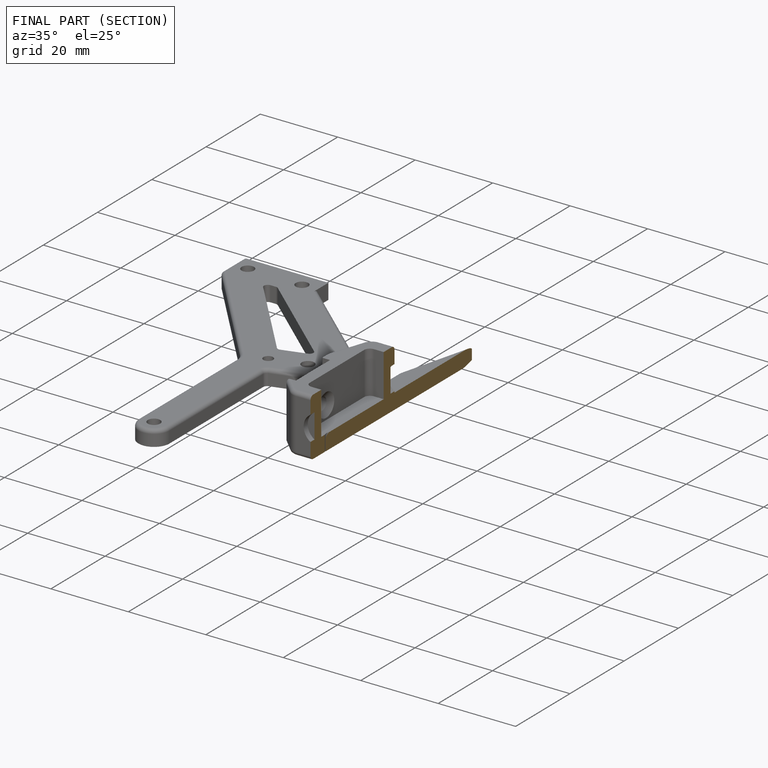
[diagram: finished part — half-section view (interior)]
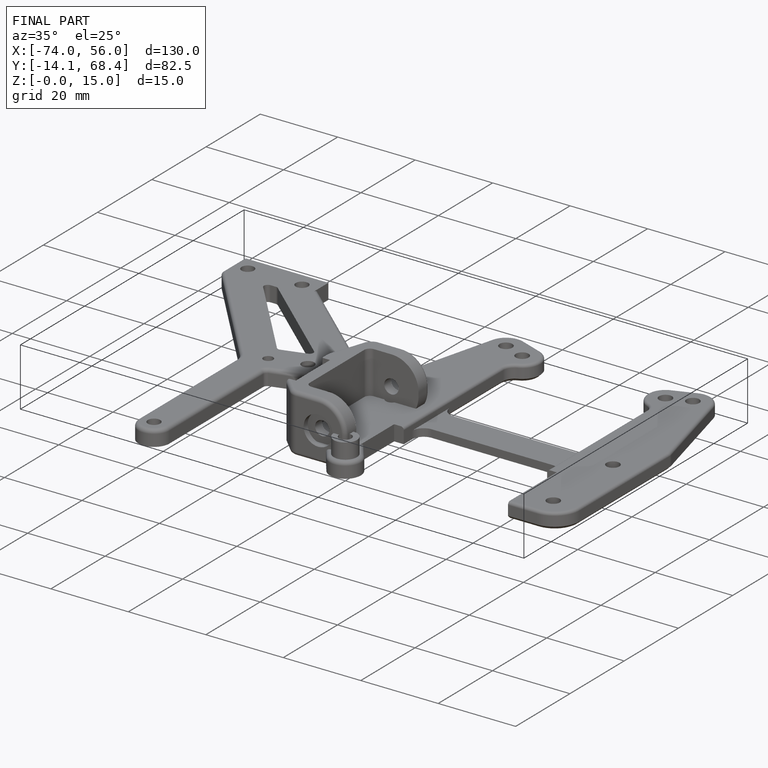
[diagram: finished part — iso view with bounding-box wireframe]
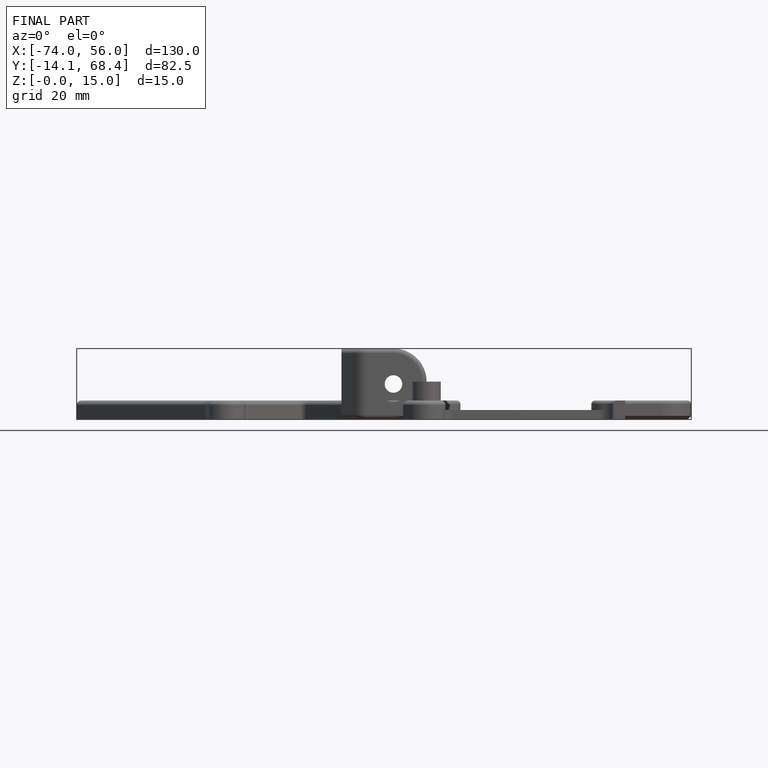
[diagram: finished part — front view with bounding-box wireframe]
